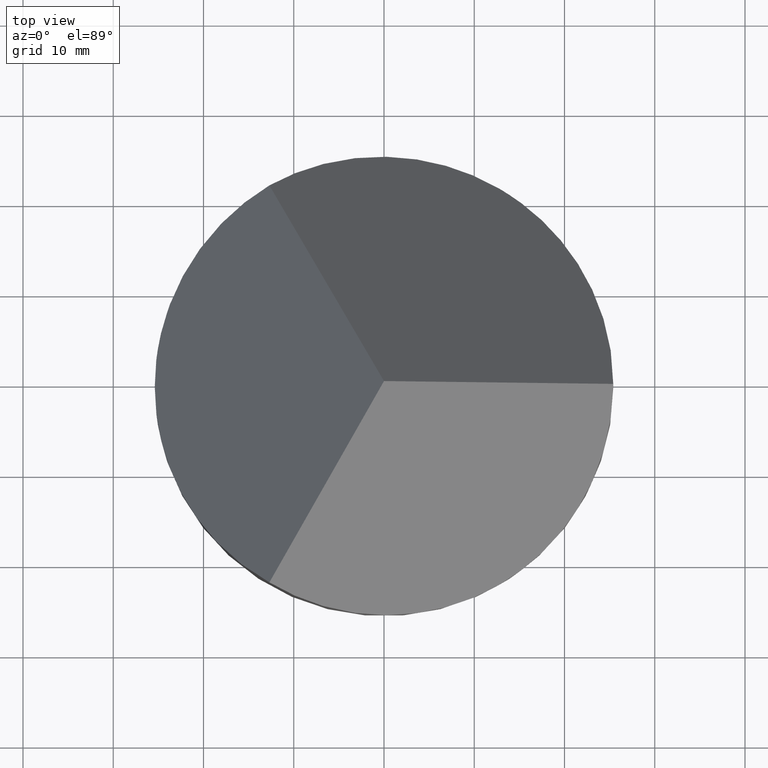
[diagram: clean part render]
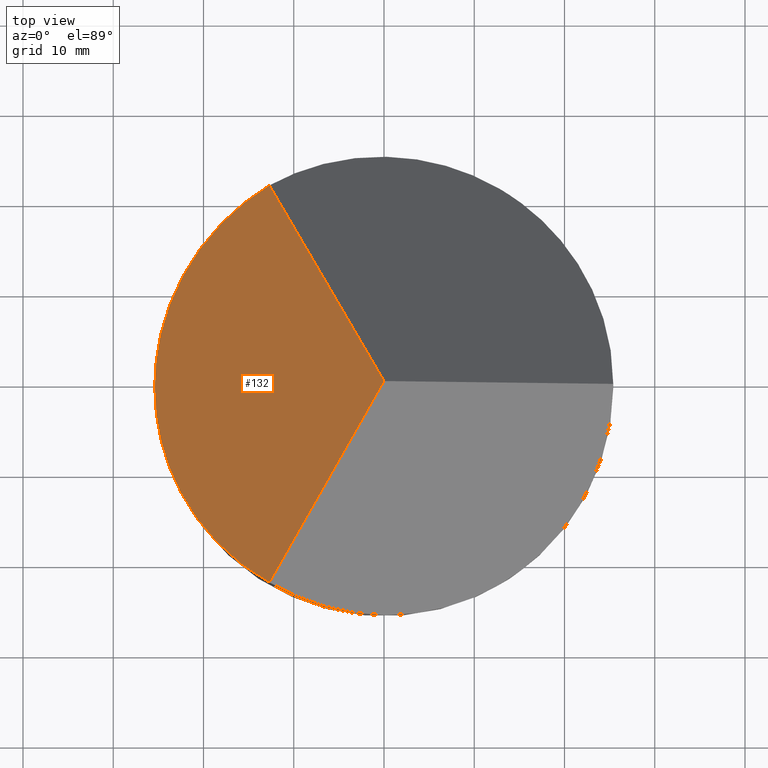
[diagram: same view with one face highlighted and labeled with its STEP entity id]
A machine part, top view. The second image highlights one B-rep face of the part: STEP entity #132.
In plain terms, the highlighted planar face has unit normal (0.8164, 0, -0.5774).
Its self-contained STEP definition (entity closure, byte-faithful):
#4 =( BOUNDED_CURVE ( )  B_SPLINE_CURVE ( 3, ( #122, #101, #192, #190 ),
 .UNSPECIFIED., .F., .T. ) 
 B_SPLINE_CURVE_WITH_KNOTS ( ( 4, 4 ),
 ( 0.0000000000000000000, 1.047197551196596700 ),
 .UNSPECIFIED. ) 
 CURVE ( )  GEOMETRIC_REPRESENTATION_ITEM ( )  RATIONAL_B_SPLINE_CURVE ( ( 1.000000000000000000, 0.9106836025229592100, 0.9106836025229592100, 1.000000000000000000 ) ) 
 REPRESENTATION_ITEM ( '' )  );
#8 = EDGE_LOOP ( 'NONE', ( #287, #227, #57, #12 ) ) ;
#12 = ORIENTED_EDGE ( 'NONE', *, *, #301, .F. ) ;
#30 = VERTEX_POINT ( 'NONE', #255 ) ;
#44 = CARTESIAN_POINT ( 'NONE',  ( -6.938893903907228400E-015, -3.650717720411316700E-015, 37.49999999999999300 ) ) ;
#48 = CARTESIAN_POINT ( 'NONE',  ( 11.40424666751465700, -19.75273465018338100, 53.62469070922507100 ) ) ;
#52 = CARTESIAN_POINT ( 'NONE',  ( -25.40000000000000600, -9.297045256124731000, 1.586435872964648800 ) ) ;
#57 = ORIENTED_EDGE ( 'NONE', *, *, #189, .F. ) ;
#62 = EDGE_CURVE ( 'NONE', #73, #64, #179, .T. ) ;
#64 = VERTEX_POINT ( 'NONE', #44 ) ;
#69 = CARTESIAN_POINT ( 'NONE',  ( 0.0000000000000000000, -39.50000000000000000, 37.50000000000000000 ) ) ;
#73 = VERTEX_POINT ( 'NONE', #230 ) ;
#90 = CARTESIAN_POINT ( 'NONE',  ( -11.40424666751465700, -19.75273465018338800, 21.37530929077492900 ) ) ;
#94 =( BOUNDED_CURVE ( )  B_SPLINE_CURVE ( 3, ( #118, #285, #52, #261 ),
 .UNSPECIFIED., .F., .T. ) 
 B_SPLINE_CURVE_WITH_KNOTS ( ( 4, 4 ),
 ( 5.235987755982989700, 6.283185307179586200 ),
 .UNSPECIFIED. ) 
 CURVE ( )  GEOMETRIC_REPRESENTATION_ITEM ( )  RATIONAL_B_SPLINE_CURVE ( ( 1.000000000000000000, 0.9106836025229592100, 0.9106836025229592100, 1.000000000000000000 ) ) 
 REPRESENTATION_ITEM ( '' )  );
#101 = CARTESIAN_POINT ( 'NONE',  ( -25.40000000000000600, 9.297045256124734500, 1.586435872964648800 ) ) ;
#118 = CARTESIAN_POINT ( 'NONE',  ( -12.70000000000003100, -21.99704525612473600, 19.54321793648228600 ) ) ;
#122 = CARTESIAN_POINT ( 'NONE',  ( -25.39999999999999900, 0.0000000000000000000, 1.586435872964663000 ) ) ;
#132 = ADVANCED_FACE ( 'NONE', ( #163 ), #162, .F. ) ;
#138 = DIRECTION ( 'NONE',  ( 0.4082765531884056700, -0.7071557336614137100, 0.5772703218305811300 ) ) ;
#162 = PLANE ( 'NONE',  #272 ) ;
#163 = FACE_OUTER_BOUND ( 'NONE', #8, .T. ) ;
#179 = LINE ( 'NONE', #90, #242 ) ;
#185 = DIRECTION ( 'NONE',  ( -0.5774302165486711000, 0.0000000000000000000, -0.8164400437365593200 ) ) ;
#189 = EDGE_CURVE ( 'NONE', #30, #64, #309, .T. ) ;
#190 = CARTESIAN_POINT ( 'NONE',  ( -12.70000000000002400, 21.99704525612472500, 19.54321793648229600 ) ) ;
#192 = CARTESIAN_POINT ( 'NONE',  ( -20.75147737193764300, 17.34852262806235900, 8.159074278432859400 ) ) ;
#204 = EDGE_CURVE ( 'NONE', #73, #215, #94, .T. ) ;
#208 = DIRECTION ( 'NONE',  ( 0.8164400437365593200, 0.0000000000000000000, -0.5774302165486711000 ) ) ;
#215 = VERTEX_POINT ( 'NONE', #311 ) ;
#224 = VECTOR ( 'NONE', #138, 1000.000000000000000 ) ;
#227 = ORIENTED_EDGE ( 'NONE', *, *, #62, .T. ) ;
#230 = CARTESIAN_POINT ( 'NONE',  ( -12.70000000000003100, -21.99704525612473600, 19.54321793648228600 ) ) ;
#242 = VECTOR ( 'NONE', #254, 1000.000000000000100 ) ;
#254 = DIRECTION ( 'NONE',  ( 0.4082765531884056100, 0.7071557336614137100, 0.5772703218305810200 ) ) ;
#255 = CARTESIAN_POINT ( 'NONE',  ( -12.70000000000002400, 21.99704525612472500, 19.54321793648229600 ) ) ;
#261 = CARTESIAN_POINT ( 'NONE',  ( -25.39999999999999900, 0.0000000000000000000, 1.586435872964663000 ) ) ;
#272 = AXIS2_PLACEMENT_3D ( 'NONE', #69, #208, #185 ) ;
#285 = CARTESIAN_POINT ( 'NONE',  ( -20.75147737193763600, -17.34852262806235900, 8.159074278432862900 ) ) ;
#287 = ORIENTED_EDGE ( 'NONE', *, *, #204, .F. ) ;
#301 = EDGE_CURVE ( 'NONE', #215, #30, #4, .T. ) ;
#309 = LINE ( 'NONE', #48, #224 ) ;
#311 = CARTESIAN_POINT ( 'NONE',  ( -25.39999999999999900, 0.0000000000000000000, 1.586435872964663000 ) ) ;